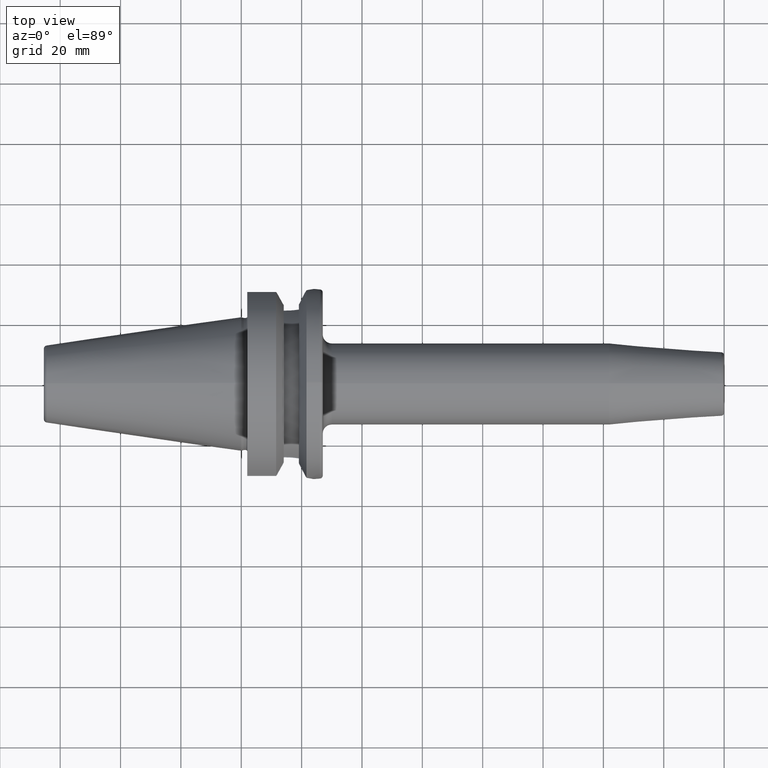
[diagram: clean part render]
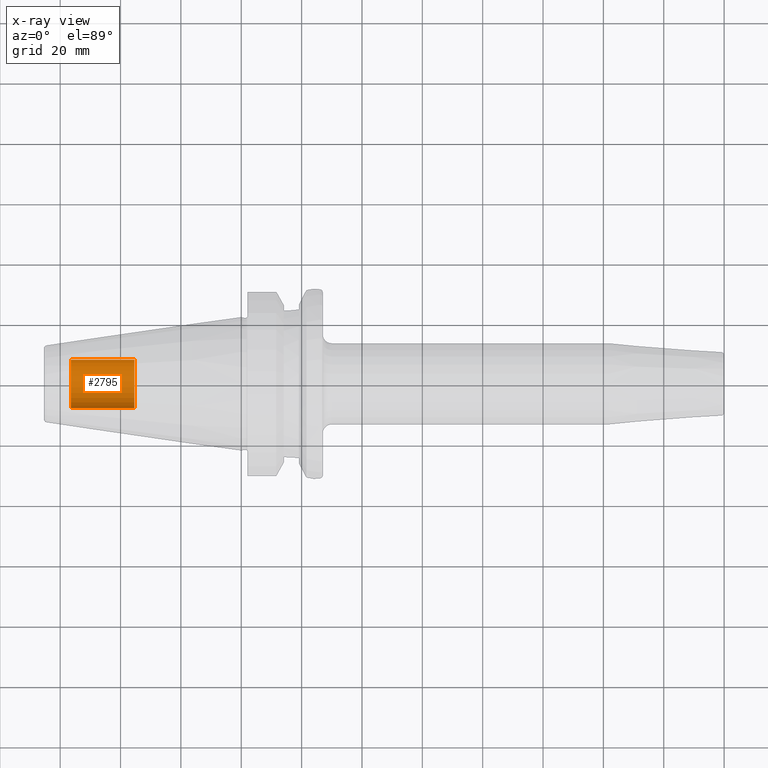
[diagram: x-ray — body ghosted, one internal face saturated and labeled with its STEP entity id]
A machine part, top view, then the same camera in x-ray: the body is ghosted and one INTERNAL B-rep face — a face not visible from any outside direction — is saturated and labeled: STEP entity #2795.
In plain terms, the highlighted cylindrical surface (edge-blend (fillet) strip) has radius 8 mm, axis along (-1, 0, 0).
Its self-contained STEP definition (entity closure, byte-faithful):
#2730=CARTESIAN_POINT('',(-5.64E1,0.E0,0.E0));
#2731=DIRECTION('',(1.E0,0.E0,0.E0));
#2732=DIRECTION('',(0.E0,-1.E0,0.E0));
#2733=AXIS2_PLACEMENT_3D('',#2730,#2731,#2732);
#2740=DIRECTION('',(1.E0,0.E0,0.E0));
#2741=VECTOR('',#2740,2.1E1);
#2742=CARTESIAN_POINT('',(-5.64E1,-8.E0,0.E0));
#2743=LINE('',#2742,#2741);
#2744=DIRECTION('',(1.E0,0.E0,0.E0));
#2745=VECTOR('',#2744,2.1E1);
#2746=CARTESIAN_POINT('',(-5.64E1,8.E0,0.E0));
#2747=LINE('',#2746,#2745);
#2753=CARTESIAN_POINT('',(-3.54E1,0.E0,0.E0));
#2754=DIRECTION('',(-1.E0,0.E0,0.E0));
#2755=DIRECTION('',(0.E0,1.E0,0.E0));
#2756=AXIS2_PLACEMENT_3D('',#2753,#2754,#2755);
#2768=CARTESIAN_POINT('',(-3.54E1,8.E0,0.E0));
#2769=CARTESIAN_POINT('',(-3.54E1,-8.E0,0.E0));
#2770=VERTEX_POINT('',#2768);
#2771=VERTEX_POINT('',#2769);
#2772=CARTESIAN_POINT('',(-5.64E1,8.E0,0.E0));
#2773=CARTESIAN_POINT('',(-5.64E1,-8.E0,0.E0));
#2774=VERTEX_POINT('',#2772);
#2775=VERTEX_POINT('',#2773);
#2780=CARTESIAN_POINT('',(-1.373367445015E1,0.E0,0.E0));
#2781=DIRECTION('',(-1.E0,0.E0,0.E0));
#2782=DIRECTION('',(0.E0,1.E0,0.E0));
#2783=AXIS2_PLACEMENT_3D('',#2780,#2781,#2782);
#2784=CYLINDRICAL_SURFACE('',#2783,8.E0);
#2786=ORIENTED_EDGE('',*,*,#2785,.T.);
#2788=ORIENTED_EDGE('',*,*,#2787,.T.);
#2790=ORIENTED_EDGE('',*,*,#2789,.T.);
#2792=ORIENTED_EDGE('',*,*,#2791,.F.);
#2793=EDGE_LOOP('',(#2786,#2788,#2790,#2792));
#2794=FACE_OUTER_BOUND('',#2793,.F.);
#2795=ADVANCED_FACE('',(#2794),#2784,.F.);
#2734=CIRCLE('',#2733,8.E0);
#2757=CIRCLE('',#2756,8.E0);
#2785=EDGE_CURVE('',#2775,#2774,#2734,.T.);
#2787=EDGE_CURVE('',#2774,#2770,#2747,.T.);
#2789=EDGE_CURVE('',#2770,#2771,#2757,.T.);
#2791=EDGE_CURVE('',#2775,#2771,#2743,.T.);